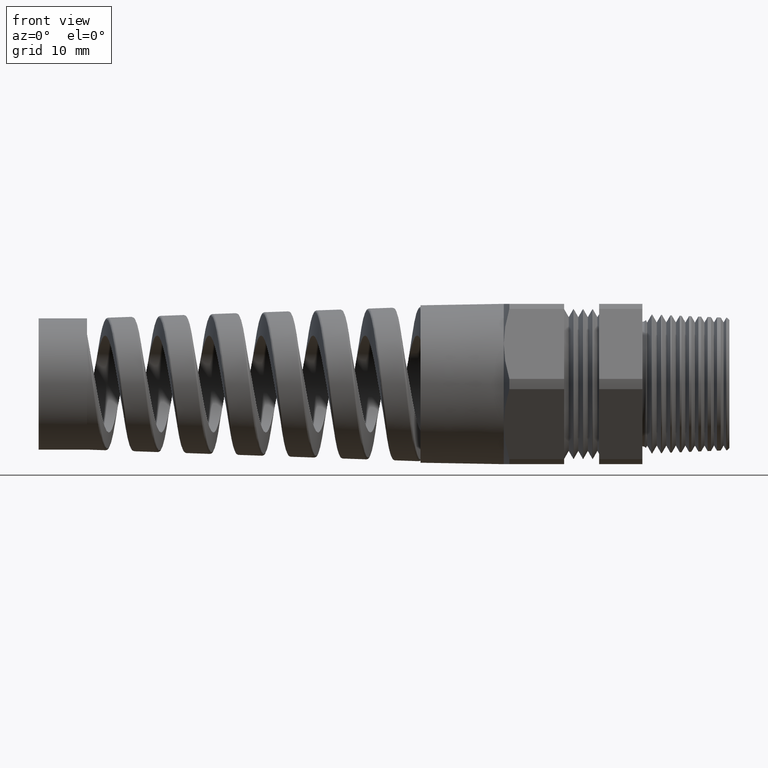
[diagram: clean part render]
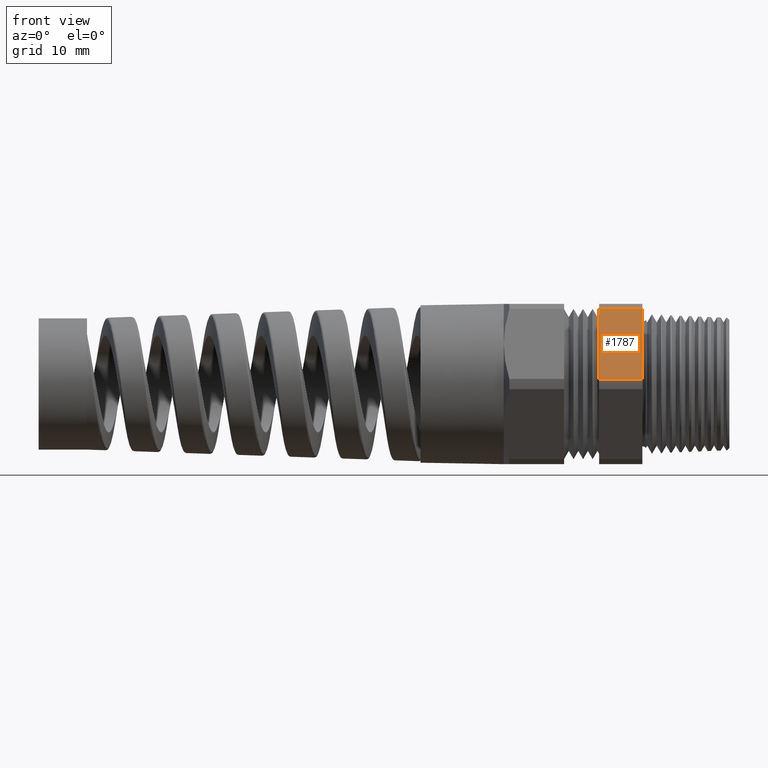
[diagram: same view with one face highlighted and labeled with its STEP entity id]
A machine part, front view. The second image highlights one B-rep face of the part: STEP entity #1787.
In plain terms, the highlighted planar face has unit normal (0, -0.866, 0.5).
Its self-contained STEP definition (entity closure, byte-faithful):
#1247 = EDGE_CURVE ( 'NONE', #1773, #7731, #8714, .T. ) ;
#1758 = EDGE_CURVE ( 'NONE', #1946, #7728, #9737, .T. ) ;
#1764 = EDGE_CURVE ( 'NONE', #1946, #1773, #9732, .T. ) ;
#1773 = VERTEX_POINT ( 'NONE', #9773 ) ;
#1786 = EDGE_LOOP ( 'NONE', ( #1823, #1803, #1914, #1913 ) ) ;
#1787 = ADVANCED_FACE ( 'NONE', ( #9754 ), #9753, .T. ) ;
#1803 = ORIENTED_EDGE ( 'NONE', *, *, #1247, .T. ) ;
#1823 = ORIENTED_EDGE ( 'NONE', *, *, #1764, .T. ) ;
#1913 = ORIENTED_EDGE ( 'NONE', *, *, #1758, .F. ) ;
#1914 = ORIENTED_EDGE ( 'NONE', *, *, #7730, .F. ) ;
#1946 = VERTEX_POINT ( 'NONE', #9936 ) ;
#6286 = CARTESIAN_POINT ( 'NONE',  ( 0.0000000000000000000, -0.5255614297801199900, 0.02970090112228907300 ) ) ;
#6287 = DIRECTION ( 'NONE',  ( 0.0000000000000000000, -0.5000000000000000000, -0.8660254037844386000 ) ) ;
#6288 = VECTOR ( 'NONE', #6287, 39.37007874015748900 ) ;
#6289 = CARTESIAN_POINT ( 'NONE',  ( 0.0000000000000000000, -0.2885024497772518700, 0.4402990988777108500 ) ) ;
#6290 = LINE ( 'NONE', #6289, #6288 ) ;
#6291 = CARTESIAN_POINT ( 'NONE',  ( 0.0000000000000000000, -0.2885024497772517000, 0.4402990988777108500 ) ) ;
#7728 = VERTEX_POINT ( 'NONE', #6291 ) ;
#7730 = EDGE_CURVE ( 'NONE', #7728, #7731, #6290, .T. ) ;
#7731 = VERTEX_POINT ( 'NONE', #6286 ) ;
#8711 = DIRECTION ( 'NONE',  ( 1.000000000000000000, 0.0000000000000000000, 0.0000000000000000000 ) ) ;
#8712 = VECTOR ( 'NONE', #8711, 39.37007874015748100 ) ;
#8713 = CARTESIAN_POINT ( 'NONE',  ( -2.316272878851058700, -0.5255614297801198800, 0.02970090112228906600 ) ) ;
#8714 = LINE ( 'NONE', #8713, #8712 ) ;
#9724 = DIRECTION ( 'NONE',  ( 0.0000000000000000000, -0.5000000000000000000, -0.8660254037844386000 ) ) ;
#9725 = VECTOR ( 'NONE', #9724, 39.37007874015748100 ) ;
#9726 = CARTESIAN_POINT ( 'NONE',  ( -0.2537313432835821000, -0.2970569397786860200, 0.4254822875623872100 ) ) ;
#9732 = LINE ( 'NONE', #9726, #9725 ) ;
#9734 = DIRECTION ( 'NONE',  ( 1.000000000000000000, 0.0000000000000000000, 0.0000000000000000000 ) ) ;
#9735 = VECTOR ( 'NONE', #9734, 39.37007874015748100 ) ;
#9736 = CARTESIAN_POINT ( 'NONE',  ( -2.316272878851058700, -0.2885024497772517000, 0.4402990988777108500 ) ) ;
#9737 = LINE ( 'NONE', #9736, #9735 ) ;
#9749 = DIRECTION ( 'NONE',  ( 0.0000000000000000000, -0.5000000000000000000, -0.8660254037844386000 ) ) ;
#9750 = DIRECTION ( 'NONE',  ( 0.0000000000000000000, -0.8660254037844387100, 0.5000000000000001100 ) ) ;
#9751 = CARTESIAN_POINT ( 'NONE',  ( -2.316272878851058700, -0.2885024497772518700, 0.4402990988777108500 ) ) ;
#9752 = AXIS2_PLACEMENT_3D ( 'NONE', #9751, #9750, #9749 ) ;
#9753 = PLANE ( 'NONE',  #9752 ) ;
#9754 = FACE_OUTER_BOUND ( 'NONE', #1786, .T. ) ;
#9773 = CARTESIAN_POINT ( 'NONE',  ( -0.2537313432835821600, -0.5255614297801198800, 0.02970090112228906600 ) ) ;
#9936 = CARTESIAN_POINT ( 'NONE',  ( -0.2537313432835821600, -0.2885024497772517000, 0.4402990988777108500 ) ) ;